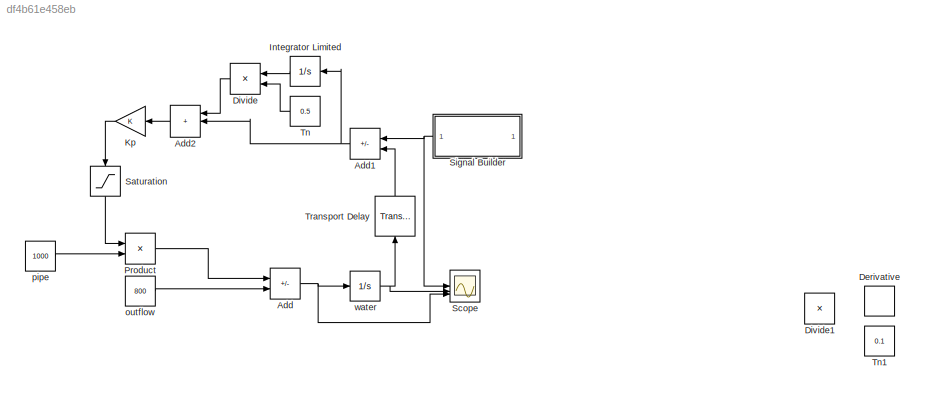
MODEL slx_df4b61e458eb
KIND model
CONFIG AbsTol = auto
CONFIG EnableMultiTasking = off
CONFIG FixedStep = 0.001
CONFIG MaxStep = auto
CONFIG MinStep = auto
CONFIG RelTol = 1e-3
CONFIG SampleTimeConstraint = Unconstrained
CONFIG SolverName = ode4
CONFIG StartTime = 0.0
CONFIG StopTime = 10.0
BLOCK [Sum] Add
  IconShape = rectangular
  Inputs = +-
BLOCK [Sum] Add1
  IconShape = rectangular
  Inputs = +-
BLOCK [Sum] Add2
  IconShape = rectangular
  Inputs = +++
BLOCK [Derivative] Derivative
BLOCK [Product] Divide
  Inputs = */
BLOCK [Product] Divide1
  Inputs = */
BLOCK [Integrator] Integrator Limited
  LimitOutput = on
  LowerSaturationLimit = 0
  UpperSaturationLimit = 1
BLOCK [Gain] Kp
BLOCK [Product] Product
BLOCK [Saturate] Saturation
  LowerLimit = 0
  NameLocation = left
  UpperLimit = 1
BLOCK [Scope] Scope
  Floating = off
  NumInputPorts = 3
  ScopeSpecificationString = Simulink.scopes.TimeScopeBlockCfg('CurrentConfiguration', extmgr.ConfigurationSet(extmgr.Configuration('Core','General UI',true),extmgr.Configuration('Core','Source UI',true),extmgr.Configuration('Sources','WiredSimulink',true),extmgr.Configuration('Visuals','Time Domain',true,'SerializedDisplays',{struct('MinYLimReal','-1162.5','MaxYLimReal','2462.5','YLabelReal','','MinYLimMag','  0.00000','MaxY...<+1390ch>
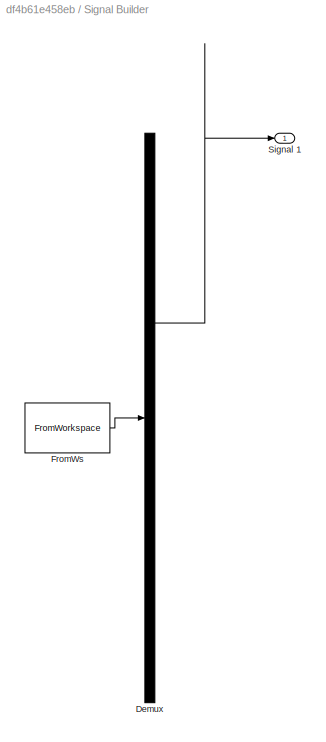
BLOCK [SubSystem] Signal Builder
  ClipboardFcn = sigbuilder_block('clipboard');
  CloseFcn = sigbuilder_block('close');
  ContinueFcn = sigbuilder_block('continue');
  CopyFcn = sigbuilder_block('copy');
  DeleteFcn = sigbuilder_block('delete');
  LoadFcn = sigbuilder_block('load');
  MaskHideContents = on
  ModelCloseFcn = sigbuilder_block('modelClose');
  NameChangeFcn = sigbuilder_block('namechange');
  OpenFcn = sigbuilder_block('open',[437.6 199.2 550.4 400 ]);
  PauseFcn = sigbuilder_block('pause');
  PreSaveFcn = sigbuilder_block('preSave');
  StartFcn = sigbuilder_block('start');
  StopFcn = sigbuilder_block('stop');
  Tag = STV Subsys
BLOCK [Demux] Signal Builder/Demux
  DisplayOption = none
  Outputs = 1
  Tag = STV Demux
BLOCK [FromWorkspace] Signal Builder/FromWs
  Tag = STV FromWs
  VariableName = tuvar
BLOCK [Outport] Signal Builder/Signal 1
  Tag = STV Outport
BLOCK [Constant] Tn
  Value = 0.5
BLOCK [Constant] Tn1
  Value = 0.1
BLOCK [TransportDelay] Transport Delay
  DelayTime = 0.001
  NameLocation = right
BLOCK [Constant] outflow
  Value = 800
BLOCK [Constant] pipe
  Value = 1000
BLOCK [Integrator] water
  InitialCondition = 1500
NET Add1:1 -> Add2:2, Integrator Limited:1
LINE Add2:1 -> Kp:1
NET Add:1 -> Scope:3, water:1
LINE Divide:1 -> Add2:1
LINE Integrator Limited:1 -> Divide:1
LINE Kp:1 -> Saturation:1
LINE Product:1 -> Add:1
LINE Saturation:1 -> Product:1
NET Signal Builder:1 -> Add1:1, Scope:1
LINE Tn:1 -> Divide:2
LINE Transport Delay:1 -> Add1:2
LINE outflow:1 -> Add:2
LINE pipe:1 -> Product:2
NET water:1 -> Scope:2, Transport Delay:1
note: NET lines group one-source signal fan-out (src -> all destinations, sorted); 1:1 wires keep LINE
